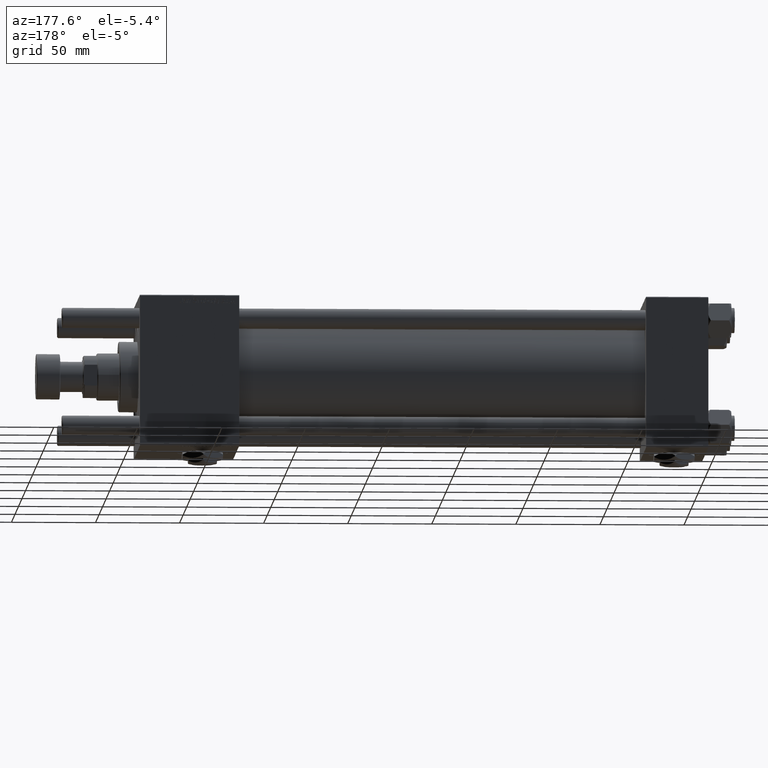
[diagram: clean part render]
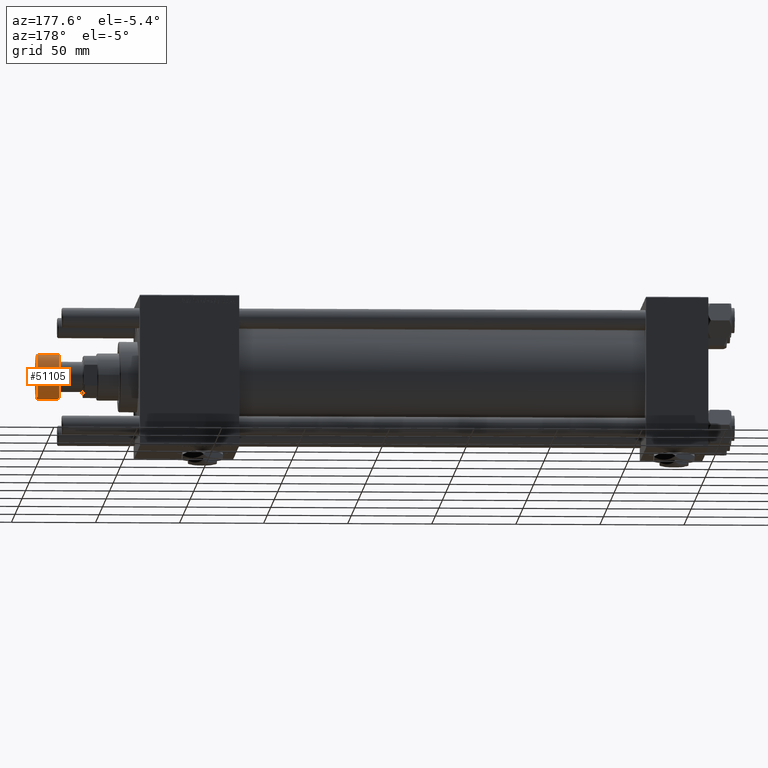
[diagram: same view with one face highlighted and labeled with its STEP entity id]
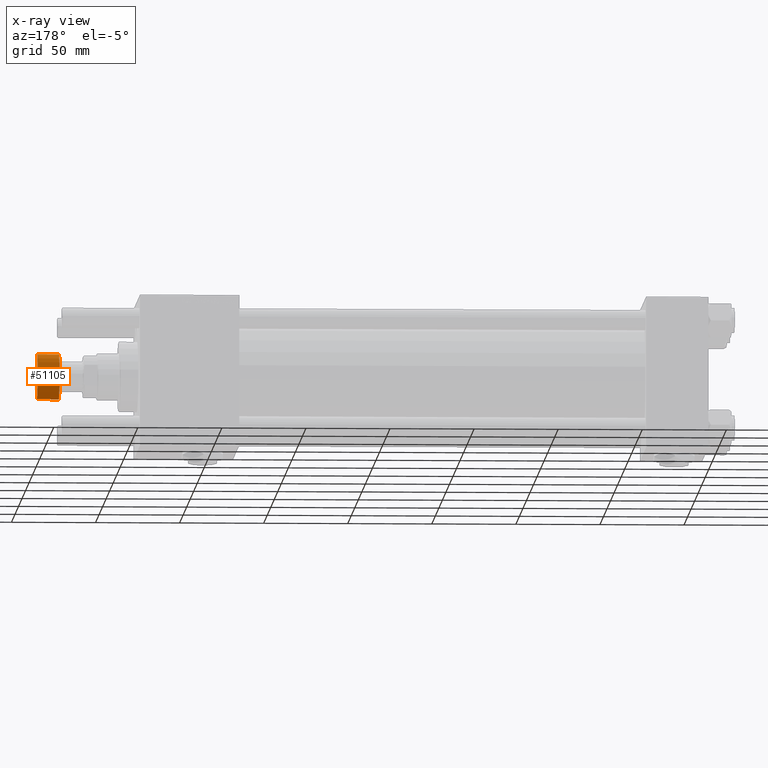
[diagram: x-ray of the same camera — body ghosted, the highlighted face saturated]
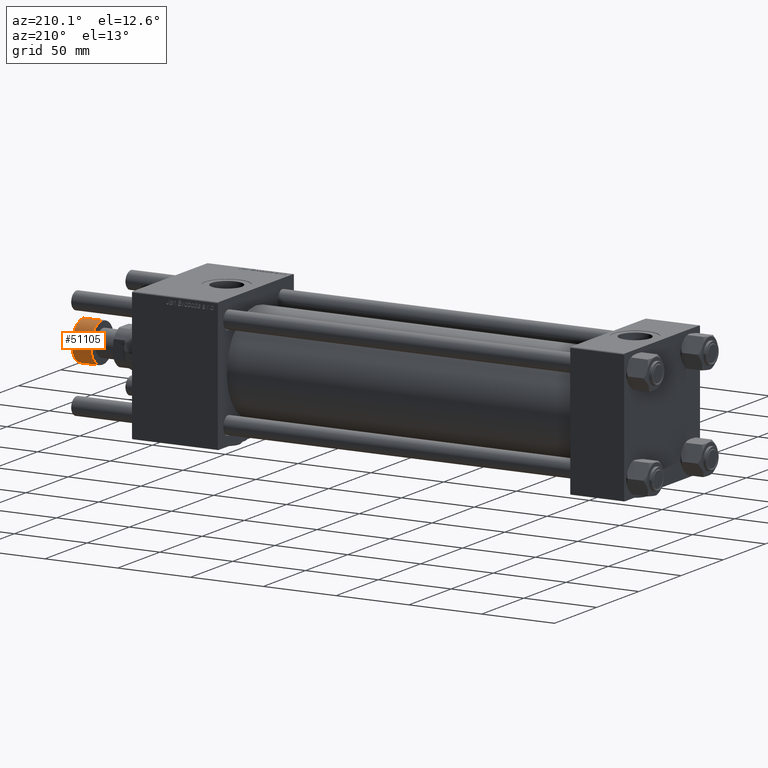
[diagram: same view with one face highlighted and labeled with its STEP entity id]
A machine part, auxiliary view. The second image highlights one B-rep face of the part: STEP entity #51105.
The next image is the same camera in x-ray: the body ghosted, the highlighted face saturated — about 0% of this face is hidden behind the body in this view.
A second angle (auxiliary view) of the same face is appended — the face is thin or edge-on in the first view.
In plain terms, the highlighted cylindrical surface (edge-blend (fillet) strip) has radius 13.5 mm, axis along (1, 0, 0).
Its self-contained STEP definition (entity closure, byte-faithful):
#1562 = CARTESIAN_POINT ( 'NONE',  ( -13.50000000000000000, 1.653273178848926867E-15, -0.5000000000000004441 ) ) ;
#3187 = CIRCLE ( 'NONE', #7005, 13.50000000000000000 ) ;
#3408 = EDGE_LOOP ( 'NONE', ( #32059, #47180, #15321, #20793 ) ) ;
#4157 = VERTEX_POINT ( 'NONE', #57225 ) ;
#5782 = DIRECTION ( 'NONE',  ( 0.000000000000000000, 0.000000000000000000, 1.000000000000000000 ) ) ;
#7005 = AXIS2_PLACEMENT_3D ( 'NONE', #8274, #58608, #44795 ) ;
#8274 = CARTESIAN_POINT ( 'NONE',  ( 0.000000000000000000, 0.000000000000000000, -13.50000000000000000 ) ) ;
#9120 = DIRECTION ( 'NONE',  ( 1.000000000000000000, 0.000000000000000000, 0.000000000000000000 ) ) ;
#9231 = FACE_OUTER_BOUND ( 'NONE', #3408, .T. ) ;
#9819 = CARTESIAN_POINT ( 'NONE',  ( 0.000000000000000000, 0.000000000000000000, -14.00000000000000000 ) ) ;
#12809 = LINE ( 'NONE', #17284, #53990 ) ;
#14020 = EDGE_CURVE ( 'NONE', #25488, #36826, #54804, .T. ) ;
#15321 = ORIENTED_EDGE ( 'NONE', *, *, #14020, .T. ) ;
#15962 = EDGE_CURVE ( 'NONE', #30367, #4157, #3187, .T. ) ;
#17284 = CARTESIAN_POINT ( 'NONE',  ( 13.50000000000000000, 0.000000000000000000, -14.00000000000000000 ) ) ;
#17784 = DIRECTION ( 'NONE',  ( -0.000000000000000000, -0.000000000000000000, -1.000000000000000000 ) ) ;
#19572 = EDGE_CURVE ( 'NONE', #30367, #36826, #12809, .T. ) ;
#20793 = ORIENTED_EDGE ( 'NONE', *, *, #19572, .F. ) ;
#25488 = VERTEX_POINT ( 'NONE', #1562 ) ;
#28081 = DIRECTION ( 'NONE',  ( 0.000000000000000000, 0.000000000000000000, 1.000000000000000000 ) ) ;
#28256 = CARTESIAN_POINT ( 'NONE',  ( 0.000000000000000000, 0.000000000000000000, -0.5000000000000004441 ) ) ;
#28855 = CARTESIAN_POINT ( 'NONE',  ( 13.50000000000000000, 0.000000000000000000, -0.5000000000000004441 ) ) ;
#30367 = VERTEX_POINT ( 'NONE', #58591 ) ;
#32059 = ORIENTED_EDGE ( 'NONE', *, *, #15962, .T. ) ;
#32304 = VECTOR ( 'NONE', #5782, 1000.000000000000000 ) ;
#34377 = EDGE_CURVE ( 'NONE', #4157, #25488, #45925, .T. ) ;
#35581 = DIRECTION ( 'NONE',  ( 0.000000000000000000, 0.000000000000000000, 1.000000000000000000 ) ) ;
#36826 = VERTEX_POINT ( 'NONE', #28855 ) ;
#40386 = CYLINDRICAL_SURFACE ( 'NONE', #46695, 13.50000000000000000 ) ;
#41391 = AXIS2_PLACEMENT_3D ( 'NONE', #28256, #17784, #9120 ) ;
#44795 = DIRECTION ( 'NONE',  ( 1.000000000000000000, 0.000000000000000000, 0.000000000000000000 ) ) ;
#45925 = LINE ( 'NONE', #46507, #32304 ) ;
#46507 = CARTESIAN_POINT ( 'NONE',  ( -13.50000000000000000, 1.653273178848926867E-15, -14.00000000000000000 ) ) ;
#46695 = AXIS2_PLACEMENT_3D ( 'NONE', #9819, #28081, #55072 ) ;
#47180 = ORIENTED_EDGE ( 'NONE', *, *, #34377, .T. ) ;
#51105 = ADVANCED_FACE ( 'NONE', ( #9231 ), #40386, .T. ) ;
#53990 = VECTOR ( 'NONE', #35581, 1000.000000000000000 ) ;
#54804 = CIRCLE ( 'NONE', #41391, 13.50000000000000000 ) ;
#55072 = DIRECTION ( 'NONE',  ( 1.000000000000000000, 0.000000000000000000, 0.000000000000000000 ) ) ;
#57225 = CARTESIAN_POINT ( 'NONE',  ( -13.50000000000000000, 1.653273178848926867E-15, -13.50000000000000000 ) ) ;
#58591 = CARTESIAN_POINT ( 'NONE',  ( 13.50000000000000000, 0.000000000000000000, -13.50000000000000000 ) ) ;
#58608 = DIRECTION ( 'NONE',  ( 0.000000000000000000, 0.000000000000000000, 1.000000000000000000 ) ) ;